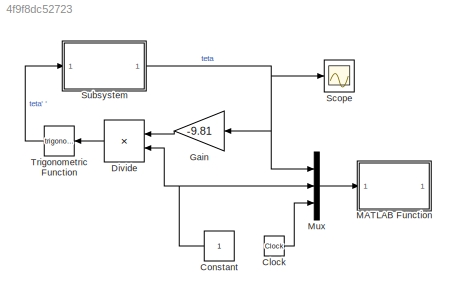
MODEL slx_4f9f8dc52723
KIND model
CONFIG AbsTol = auto
CONFIG EnableMultiTasking = off
CONFIG FixedStep = auto
CONFIG MaxStep = auto
CONFIG MinStep = auto
CONFIG RelTol = 1e-3
CONFIG SampleTimeConstraint = Unconstrained
CONFIG SolverName = VariableStepAuto
CONFIG StartTime = 0.0
CONFIG StopTime = 100
BLOCK [Clock] Clock
BLOCK [Constant] Constant
BLOCK [Product] Divide
  Inputs = */
BLOCK [Gain] Gain
  Gain = -9.81
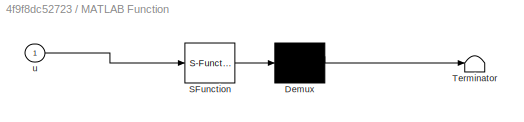
BLOCK [SubSystem] MATLAB Function
  ErrorFcn = Stateflow.Translate.translate
  PermitHierarchicalResolution = ExplicitOnly
  SFBlockType = MATLAB Function
  TreatAsAtomicUnit = on
BLOCK [Demux] MATLAB Function/ Demux 
  Outputs = 1
BLOCK [S-Function] MATLAB Function/ SFunction 
  EnableBusSupport = on
  FunctionName = sf_sfun
  PortCounts = [1 1]
  SFcnIsStateOwnerBlock = off
  SFunctionDeploymentMode = off
  Tag = Stateflow S-Function 2
BLOCK [Terminator] MATLAB Function/ Terminator 
BLOCK [Inport] MATLAB Function/u
BLOCK [Mux] Mux
  DisplayOption = bar
  Inputs = 3
BLOCK [Scope] Scope
  Floating = off
  NumInputPorts = 1
  ScopeSpecificationString = Simulink.scopes.TimeScopeBlockCfg('CurrentConfiguration', extmgr.ConfigurationSet(extmgr.Configuration('Core','General UI',true),extmgr.Configuration('Core','Source UI',true),extmgr.Configuration('Sources','WiredSimulink',true),extmgr.Configuration('Visuals','Time Domain',true,'SerializedDisplays',{struct('MinYLimReal','-0.12451','MaxYLimReal','0.12495','YLabelReal','','MinYLimMag','0.00000','MaxY...<+1443ch>
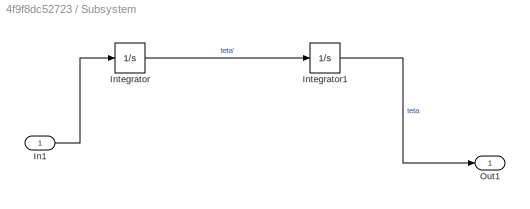
BLOCK [SubSystem] Subsystem
BLOCK [Inport] Subsystem/In1
BLOCK [Integrator] Subsystem/Integrator
BLOCK [Integrator] Subsystem/Integrator1
  InitialCondition = 0.1
BLOCK [Outport] Subsystem/Out1
BLOCK [Trigonometry] Trigonometric Function
LINE Clock:1 -> Mux:3
NET Constant:1 -> Divide:2, Mux:2
LINE Divide:1 -> Trigonometric Function:1
LINE Gain:1 -> Divide:1
LINE Mux:1 -> MATLAB Function:1
LINE Subsystem/In1:1 -> Subsystem/Integrator:1
LINE Subsystem/Integrator1:1 -> Subsystem/Out1:1
LINE Subsystem/Integrator:1 -> Subsystem/Integrator1:1
NET Subsystem:1 -> Gain:1, Mux:1, Scope:1
LINE Trigonometric Function:1 -> Subsystem:1
note: NET lines group one-source signal fan-out (src -> all destinations, sorted); 1:1 wires keep LINE
CHART MATLAB Function states=1 transitions=1
  STATE_LABEL 'eML_blk_kernel()'
  STATE_LABEL 'SCRIPT:\nfunction narysuj(u)\n\nteta = u(1);\nl = u(2);\nt = u(3);\n\ny=-l*cos(teta);\nx=l*sin(teta);\n\ncla\nfill([-1/4 -1/4 1/4 1/4],[0.1 0 0 0.1],\'r\')\nhold on;\nline([0 x],[0 y])\nplot(x,y,\'r.\',\'MarkerSize\',30)\nxlim([-l l])\nylim([-l 0.1])\ntext(-1/4,0.005,["  T = "])\nhold off\naxis off\n\ndrawnow'
CHART  states=0 transitions=0
